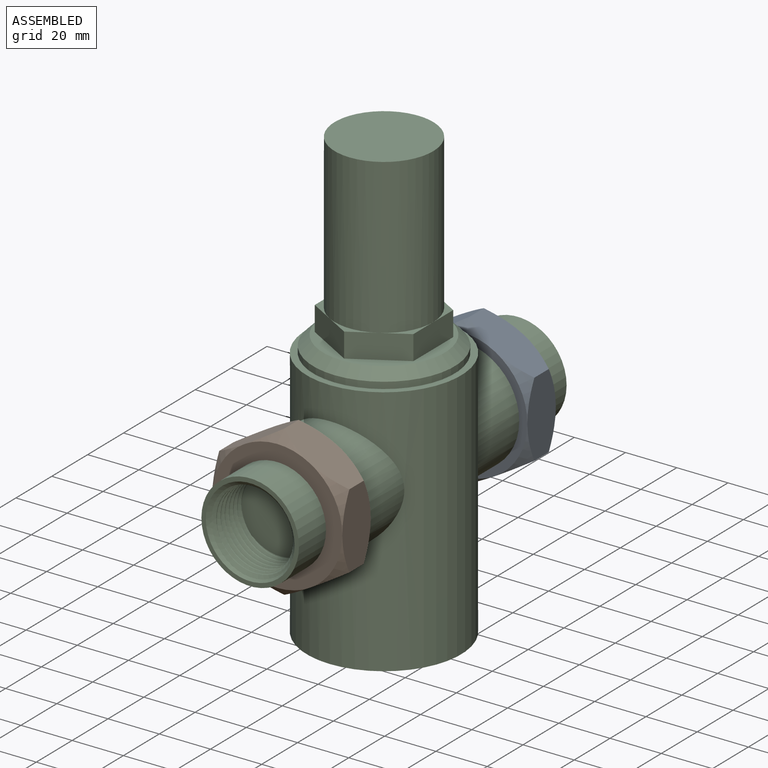
[diagram: assembled view]
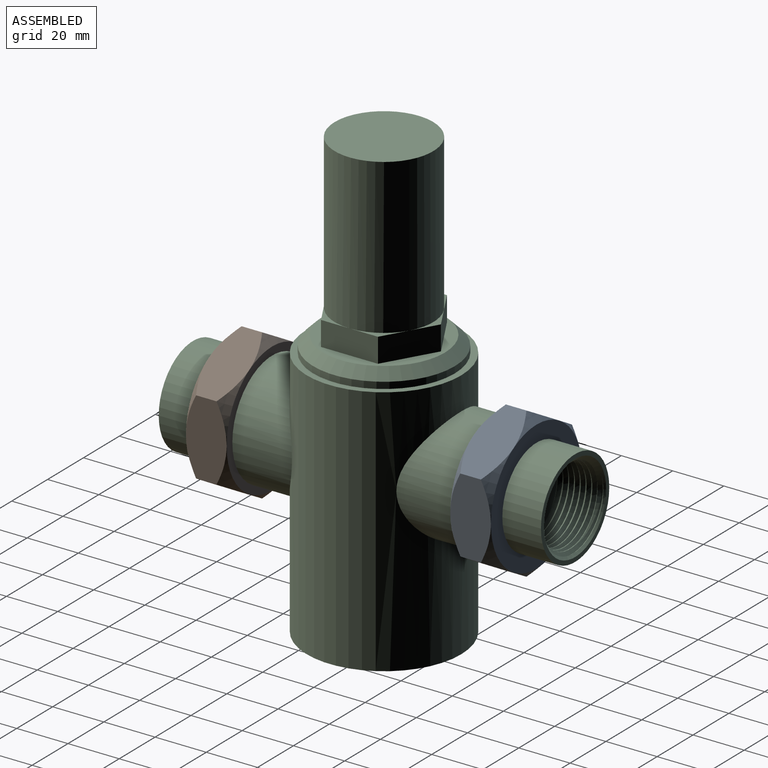
[diagram: assembled view, second angle]
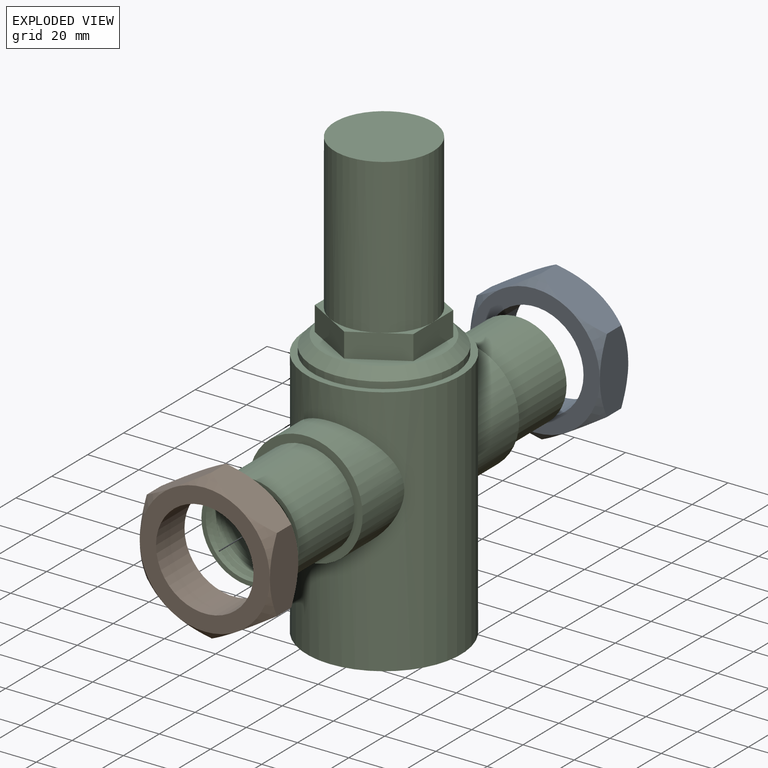
[diagram: exploded view]
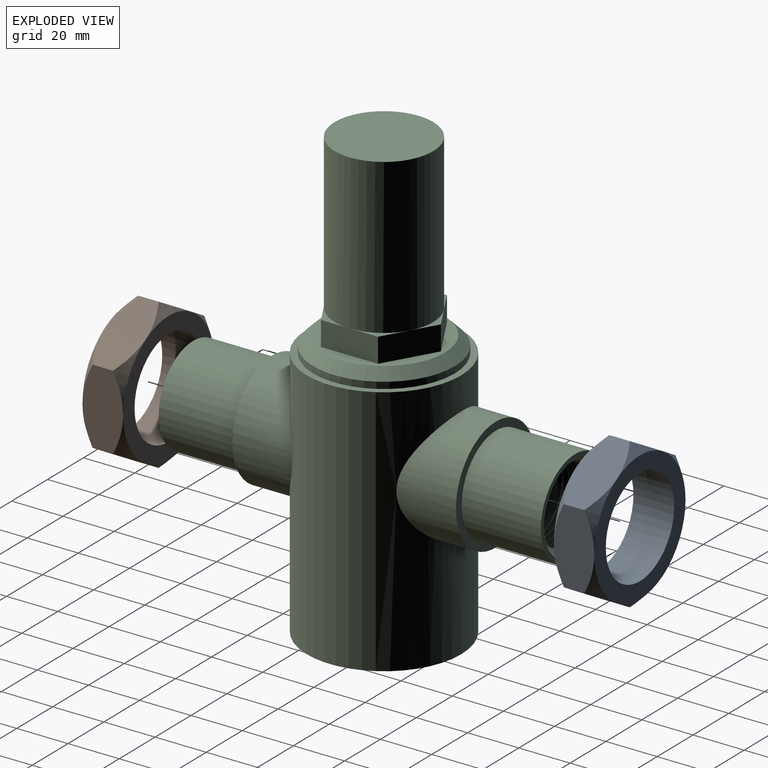
[diagram: exploded view, second angle]
ASSEMBLY  parts=3 mates=2
PART A: 21 faces, bbox 58.7x15.9x58.7 mm
  f0: plane 50.8x50.8mm, normal (0,1,0), area 886.7mm2, adj f8,f9,f10,f11,f12,f13,f14
  f1: plane 25.4x15.89mm, normal (-0.5,0,0.87), area 386.5mm2, adj f2,f6,f9,f14,f15,f16
  f2: plane 29.34x15.89mm, normal (-1,0,0), area 386.5mm2, adj f1,f3,f13,f14,f15,f20
  f3: plane 25.4x15.89mm, normal (-0.5,0,-0.87), area 386.5mm2, adj f2,f4,f12,f13,f19,f20
  f4: plane 25.4x15.89mm, normal (0.5,0,-0.87), area 386.5mm2, adj f3,f5,f11,f12,f18,f19
  f5: plane 29.34x15.89mm, normal (1,0,0), area 386.5mm2, adj f4,f6,f10,f11,f17,f18
  f6: plane 25.4x15.89mm, normal (0.5,0,0.87), area 386.5mm2, adj f1,f5,f9,f10,f16,f17
  f7: plane 50.8x50.8mm, normal (0,-1,0), area 886.7mm2, adj f8,f15,f16,f17,f18,f19,f20
  f8: cylinder r=19.05mm len=38.1mm, axis (0,-1,0), area 1900.2mm2, adj f0,f7
  f9: cone r=25.4mm half-angle=45deg, axis (0,-1,0), area 49mm2, adj f0,f1,f6
  f10: cone r=25.4mm half-angle=45deg, axis (0,-1,0), area 49mm2, adj f0,f5,f6
  f11: cone r=25.4mm half-angle=45deg, axis (0,-1,0), area 49mm2, adj f0,f4,f5
  f12: cone r=25.4mm half-angle=45deg, axis (0,-1,0), area 49mm2, adj f0,f3,f4
  f13: cone r=25.4mm half-angle=45deg, axis (0,-1,0), area 49mm2, adj f0,f2,f3
  f14: cone r=25.4mm half-angle=45deg, axis (0,-1,0), area 49mm2, adj f0,f1,f2
  f15: cone r=25.4mm half-angle=45deg, axis (0,1,0), area 49mm2, adj f1,f2,f7
  f16: cone r=25.4mm half-angle=45deg, axis (0,1,0), area 49mm2, adj f1,f6,f7
  f17: cone r=25.4mm half-angle=45deg, axis (0,1,0), area 49mm2, adj f5,f6,f7
  f18: cone r=25.4mm half-angle=45deg, axis (0,1,0), area 49mm2, adj f4,f5,f7
  f19: cone r=25.4mm half-angle=45deg, axis (0,1,0), area 49mm2, adj f3,f4,f7
  f20: cone r=25.4mm half-angle=45deg, axis (0,1,0), area 49mm2, adj f2,f3,f7
PART B: 21 faces, bbox 58.7x15.9x58.7 mm
  f0: plane 50.8x50.8mm, normal (0,-1,0), area 886.7mm2, adj f8,f9,f10,f11,f12,f13,f14
  f1: plane 25.4x15.89mm, normal (-0.5,0,0.87), area 386.5mm2, adj f2,f6,f9,f14,f15,f16
  f2: plane 29.34x15.89mm, normal (-1,0,0), area 386.5mm2, adj f1,f3,f13,f14,f15,f20
  f3: plane 25.4x15.89mm, normal (-0.5,0,-0.87), area 386.5mm2, adj f2,f4,f12,f13,f19,f20
  f4: plane 25.4x15.89mm, normal (0.5,0,-0.87), area 386.5mm2, adj f3,f5,f11,f12,f18,f19
  f5: plane 29.34x15.89mm, normal (1,0,0), area 386.5mm2, adj f4,f6,f10,f11,f17,f18
  f6: plane 25.4x15.89mm, normal (0.5,0,0.87), area 386.5mm2, adj f1,f5,f9,f10,f16,f17
  f7: plane 50.8x50.8mm, normal (0,1,0), area 886.7mm2, adj f8,f15,f16,f17,f18,f19,f20
  f8: cylinder r=19.05mm len=38.1mm, axis (0,1,0), area 1900.2mm2, adj f0,f7
  f9: cone r=25.4mm half-angle=45deg, axis (0,1,0), area 49mm2, adj f0,f1,f6
  f10: cone r=25.4mm half-angle=45deg, axis (0,1,0), area 49mm2, adj f0,f5,f6
  f11: cone r=25.4mm half-angle=45deg, axis (0,1,0), area 49mm2, adj f0,f4,f5
  f12: cone r=25.4mm half-angle=45deg, axis (0,1,0), area 49mm2, adj f0,f3,f4
  f13: cone r=25.4mm half-angle=45deg, axis (0,1,0), area 49mm2, adj f0,f2,f3
  f14: cone r=25.4mm half-angle=45deg, axis (0,1,0), area 49mm2, adj f0,f1,f2
  f15: cone r=25.4mm half-angle=45deg, axis (0,-1,0), area 49mm2, adj f1,f2,f7
  f16: cone r=25.4mm half-angle=45deg, axis (0,-1,0), area 49mm2, adj f1,f6,f7
  f17: cone r=25.4mm half-angle=45deg, axis (0,-1,0), area 49mm2, adj f5,f6,f7
  f18: cone r=25.4mm half-angle=45deg, axis (0,-1,0), area 49mm2, adj f4,f5,f7
  f19: cone r=25.4mm half-angle=45deg, axis (0,-1,0), area 49mm2, adj f3,f4,f7
  f20: cone r=25.4mm half-angle=45deg, axis (0,-1,0), area 49mm2, adj f2,f3,f7
PART C: 46 faces, bbox 60.4x149.7x174.7 mm
  f0: cylinder r=30.16mm len=98.43mm, axis (0,0,-1), area 15274.3mm2, adj f8,f9,f20,f24
  f1: plane 16.67x9.62mm, normal (0,0,1), area 19.9mm2, adj f14,f15,f17
  f2: plane 16.67x9.62mm, normal (0,0,1), area 19.9mm2, adj f15,f16,f17
  f3: plane 19.25x5.56mm, normal (0,0,1), area 19.9mm2, adj f11,f16,f17
  f4: plane 16.67x9.62mm, normal (0,0,1), area 19.9mm2, adj f11,f12,f17
  f5: plane 16.67x9.62mm, normal (0,0,1), area 19.9mm2, adj f12,f13,f17
  f6: plane 19.25x5.56mm, normal (0,0,1), area 19.9mm2, adj f13,f14,f17
  f7: plane 47.63x47.63mm, normal (0,0,1), area 498.1mm2, adj f11,f12,f13,f14,f15,f16,f45
  f8: plane 60.33x60.33mm, normal (0,0,1), area 461.1mm2, adj f0,f10
  f9: plane 60.33x60.33mm, normal (0,0,-1), area 2858.1mm2, adj f0
  f10: cylinder r=27.62mm len=55.25mm, axis (0,0,-1), area 440.8mm2, adj f8,f45
  f11: plane 19.25x11.11mm, normal (-0.5,0.87,0), area 211.7mm2, adj f3,f4,f7,f12,f16
  f12: plane 22.23x9.53mm, normal (-1,0,0), area 211.7mm2, adj f4,f5,f7,f11,f13
  f13: plane 19.25x11.11mm, normal (-0.5,-0.87,0), area 211.7mm2, adj f5,f6,f7,f12,f14
  f14: plane 19.25x11.11mm, normal (0.5,-0.87,0), area 211.7mm2, adj f1,f6,f7,f13,f15
  f15: plane 22.23x9.53mm, normal (1,0,0), area 211.7mm2, adj f1,f2,f7,f14,f16
  f16: plane 19.25x11.11mm, normal (0.5,0.87,0), area 211.7mm2, adj f2,f3,f7,f11,f15
  f17: cylinder r=19.25mm len=60.33mm, axis (0,0,-1), area 7295.4mm2, adj f1,f2,f3,f4,f5,f6,f18
  f18: plane 38.5x38.5mm, normal (0,0,1), area 1163.8mm2, adj f17
  f19: plane 44.45x44.45mm, normal (0,1,0), area 411.7mm2, adj f20,f22
  f20: cylinder r=22.23mm len=44.45mm, axis (0,1,0), area 2534.1mm2, adj f0,f19
  f21: plane 38.1x38.1mm, normal (0,1,0), area 196mm2, adj f22,f43
  f22: cylinder r=19.05mm len=38.1mm, axis (0,1,0), area 3705.3mm2, adj f19,f21
  f23: plane 44.45x44.45mm, normal (0,-1,0), area 411.7mm2, adj f24,f26
  f24: cylinder r=22.23mm len=44.45mm, axis (0,1,0), area 2550mm2, adj f0,f23
  f25: plane 38.1x38.1mm, normal (0,-1,0), area 196mm2, adj f26,f34
  f26: cylinder r=19.05mm len=38.1mm, axis (0,1,0), area 3705.3mm2, adj f23,f25
  f27: cone r=16.7mm half-angle=1.8deg, axis (0,-1,0), area 188.2mm2, adj f28,f31,f32,f33,f34
  f28: plane 30.89x30.88mm, normal (0,-1,0), area 749.9mm2, adj f27,f29,f30,f31,f32
  f29: bspline ~30.35x30.33mm, area 178mm2, adj f28,f30,f31,f35
  f30: bspline ~33.3x33.21mm, area 1170.6mm2, adj f28,f29,f32,f33,f34,f35
  f31: bspline ~33.43x33.39mm, area 1178.3mm2, adj f27,f28,f29,f34,f35
  f32: plane 0.32x0.32mm, normal (-0.71,0,0.71), area 0.1mm2, adj f27,f28,f30,f33
  f33: bspline ~33.16x33mm, area 54.4mm2, adj f27,f30,f32,f34
  f34: cone r=17.34mm half-angle=45deg, axis (0,-1,0), area 191mm2, adj f25,f27,f30,f31,f33,f35
  f35: cone r=17.34mm half-angle=45deg, axis (0,-1,0), area 18.1mm2, adj f29,f30,f31,f34
  f36: cone r=16.7mm half-angle=1.8deg, axis (0,1,0), area 188.2mm2, adj f37,f40,f41,f42,f43
  f37: plane 30.89x30.88mm, normal (0,1,0), area 749.9mm2, adj f36,f38,f39,f40,f41
  f38: bspline ~30.35x30.33mm, area 178mm2, adj f37,f39,f40,f44
  f39: bspline ~33.3x33.21mm, area 1170.6mm2, adj f37,f38,f41,f42,f43,f44
  f40: bspline ~33.43x33.39mm, area 1178.3mm2, adj f36,f37,f38,f43,f44
  f41: plane 0.32x0.32mm, normal (0.71,0,0.71), area 0.1mm2, adj f36,f37,f39,f42
  f42: bspline ~33.16x33mm, area 54.4mm2, adj f36,f39,f41,f43
  f43: cone r=17.34mm half-angle=45deg, axis (0,1,0), area 191mm2, adj f21,f36,f39,f40,f42,f44
  f44: cone r=17.34mm half-angle=45deg, axis (0,1,0), area 18.1mm2, adj f38,f39,f40,f43
  f45: cone r=23.81mm half-angle=45deg, axis (0,0,-1), area 870.7mm2, adj f7,f10
PLACE A t=(-61.22,-21.48,-3.02)mm
PLACE B t=(-61.22,-21.48,-3.02)mm
PLACE C t=(-61.22,-21.48,-3.02)mm
MATE fastened B.f8 <-> C.f20  axis (0,1,0) through (-61.22,-65.14,-3.02)mm
MATE fastened A.f8 <-> C.f20  axis (0,-1,0) through (-61.22,22.17,-3.02)mm
